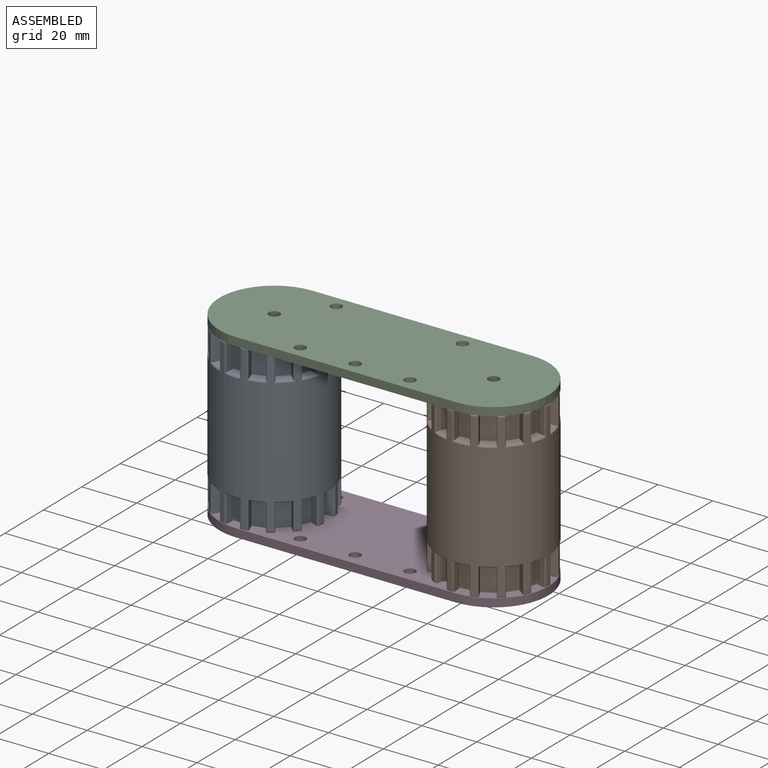
[diagram: assembled view]
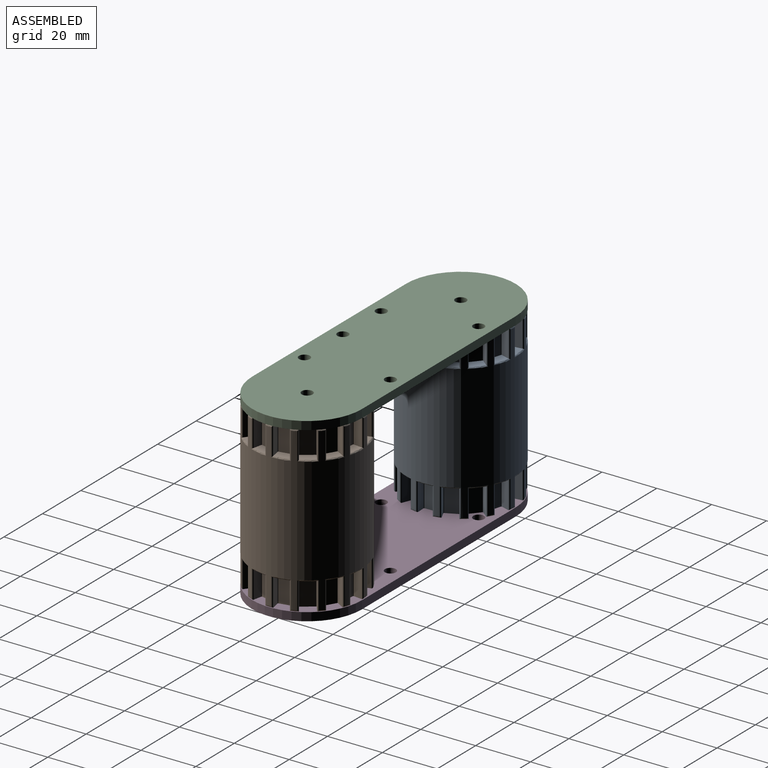
[diagram: assembled view, second angle]
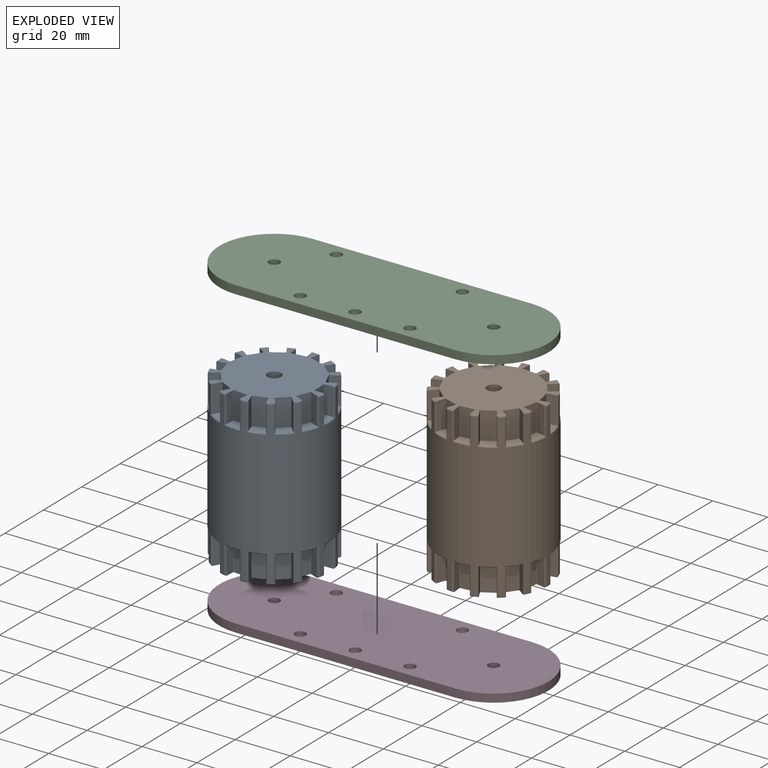
[diagram: exploded view]
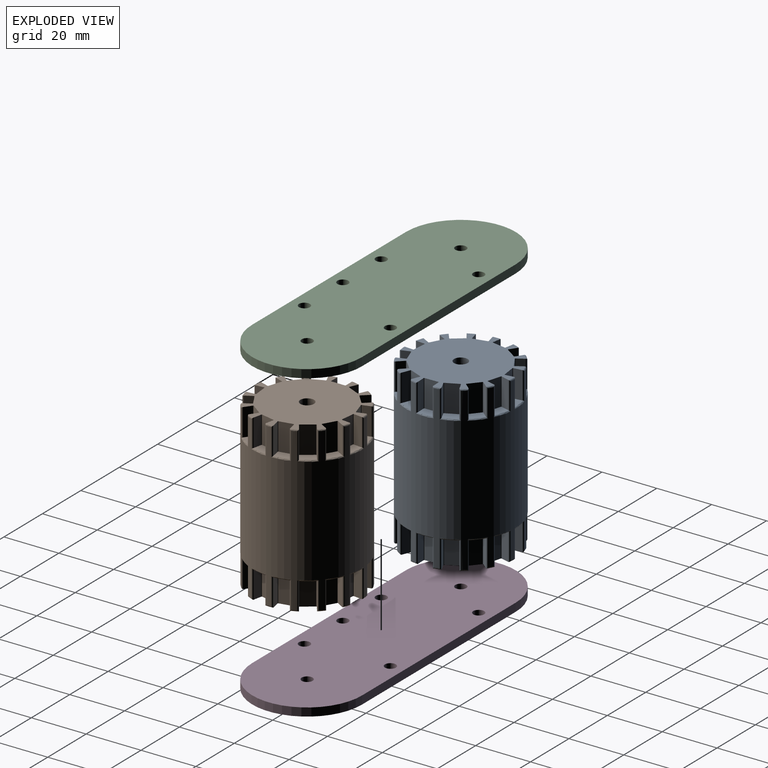
[diagram: exploded view, second angle]
ASSEMBLY  parts=4 mates=3
PART A: 304 faces, bbox 40.5x40.5x60 mm
  f0: plane 38.98x38.81mm, normal (0,0,1), area 898.7mm2, adj f93,f94,f95,f96,f97,f99,f100,f101
  f1: plane 38.98x38.81mm, normal (0,0,-1), area 898.7mm2, adj f3,f4,f5,f6,f7,f9,f10,f11
  f2: cylinder r=20mm len=59mm, axis (0,0,-1), area 5448.2mm2, adj f184,f185,f186,f187,f188,f189,f190,f191
  f3: plane 10x2.78mm, normal (0.91,0.41,0), area 30.4mm2, adj f1,f4,f8,f281
  f4: cylinder r=0.2mm len=10mm, axis (0,0,-1), area 3.1mm2, adj f1,f3,f5,f8
  f5: plane 10x4.53mm, normal (0.41,-0.91,0), area 49.6mm2, adj f1,f4,f6,f8
  f6: cylinder r=0.2mm len=10mm, axis (0,0,-1), area 3.1mm2, adj f1,f5,f7,f8
  f7: plane 10x2.78mm, normal (-0.91,-0.41,0), area 30.4mm2, adj f1,f6,f8,f285
  f8: plane 6.19x5.15mm, normal (0,0,-1), area 18.4mm2, adj f3,f4,f5,f6,f7,f281,f283,f285
  f9: plane 10x2.63mm, normal (-0.5,-0.87,0), area 30.4mm2, adj f1,f10,f14,f254
  f10: cylinder r=0.2mm len=10mm, axis (0,0,-1), area 3.1mm2, adj f1,f9,f11,f14
  f11: plane 10x4.3mm, normal (-0.87,0.5,0), area 49.6mm2, adj f1,f10,f12,f14
  f12: cylinder r=0.2mm len=10mm, axis (0,0,-1), area 3.1mm2, adj f1,f11,f13,f14
  f13: plane 10x2.63mm, normal (0.5,0.87,0), area 30.4mm2, adj f1,f12,f14,f250
  f14: plane 6.23x5.48mm, normal (0,0,-1), area 18.4mm2, adj f9,f10,f11,f12,f13,f250,f252,f254
  f15: plane 10x3.02mm, normal (-0.1,-0.99,0), area 30.4mm2, adj f1,f16,f20,f246
  f16: cylinder r=0.2mm len=10mm, axis (0,0,-1), area 3.1mm2, adj f1,f15,f17,f20
  f17: plane 10x4.93mm, normal (-0.99,0.1,0), area 49.6mm2, adj f1,f16,f18,f20
  f18: cylinder r=0.2mm len=10mm, axis (0,0,-1), area 3.1mm2, adj f1,f17,f19,f20
  f19: plane 10x3.02mm, normal (0.1,0.99,0), area 30.4mm2, adj f1,f18,f20,f245
  f20: plane 5.66x3.85mm, normal (0,0,-1), area 18.4mm2, adj f15,f16,f17,f18,f19,f244,f245,f246
  f21: plane 10x2.89mm, normal (0.31,-0.95,0), area 30.4mm2, adj f1,f22,f26,f249
  f22: cylinder r=0.2mm len=10mm, axis (0,0,-1), area 3.1mm2, adj f1,f21,f23,f26
  f23: plane 10x4.72mm, normal (-0.95,-0.31,0), area 49.6mm2, adj f1,f22,f24,f26
  f24: cylinder r=0.2mm len=10mm, axis (0,0,-1), area 3.1mm2, adj f1,f23,f25,f26
  f25: plane 10x2.89mm, normal (-0.31,0.95,0), area 30.4mm2, adj f1,f24,f26,f253
  f26: plane 6.08x4.76mm, normal (0,0,-1), area 18.4mm2, adj f21,f22,f23,f24,f25,f249,f251,f253
  f27: plane 10x2.26mm, normal (0.67,-0.74,0), area 30.4mm2, adj f1,f28,f32,f257
  f28: cylinder r=0.2mm len=10mm, axis (0,0,-1), area 3.1mm2, adj f1,f27,f29,f32
  f29: plane 10x3.69mm, normal (-0.74,-0.67,0), area 49.6mm2, adj f1,f28,f30,f32
  f30: cylinder r=0.2mm len=10mm, axis (0,0,-1), area 3.1mm2, adj f1,f29,f31,f32
  f31: plane 10x2.26mm, normal (-0.67,0.74,0), area 30.4mm2, adj f1,f30,f32,f261
  f32: plane 6.12x5.97mm, normal (0,0,-1), area 18.4mm2, adj f27,f28,f29,f30,f31,f257,f259,f261
  f33: plane 10x2.78mm, normal (0.91,-0.41,0), area 30.4mm2, adj f1,f34,f38,f265
  f34: cylinder r=0.2mm len=10mm, axis (0,0,-1), area 3.1mm2, adj f1,f33,f35,f38
  f35: plane 10x4.53mm, normal (-0.41,-0.91,0), area 49.6mm2, adj f1,f34,f36,f38
  f36: cylinder r=0.2mm len=10mm, axis (0,0,-1), area 3.1mm2, adj f1,f35,f37,f38
  f37: plane 10x2.78mm, normal (-0.91,0.41,0), area 30.4mm2, adj f1,f36,f38,f269
  f38: plane 6.19x5.15mm, normal (0,0,-1), area 18.4mm2, adj f33,f34,f35,f36,f37,f265,f267,f269
  f39: plane 10x3.04mm, normal (1,0,0), area 30.4mm2, adj f1,f40,f44,f273
  f40: cylinder r=0.2mm len=10mm, axis (0,0,-1), area 3.1mm2, adj f1,f39,f41,f44
  f41: plane 10x4.96mm, normal (0,-1,0), area 49.6mm2, adj f1,f40,f42,f44
  f42: cylinder r=0.2mm len=10mm, axis (0,0,-1), area 3.1mm2, adj f1,f41,f43,f44
  f43: plane 10x3.04mm, normal (-1,0,0), area 30.4mm2, adj f1,f42,f44,f277
  f44: plane 5.37x3.5mm, normal (0,0,-1), area 18.4mm2, adj f39,f40,f41,f42,f43,f273,f275,f277
  f45: plane 10x2.26mm, normal (0.67,0.74,0), area 30.4mm2, adj f1,f46,f50,f289
  f46: cylinder r=0.2mm len=10mm, axis (0,0,-1), area 3.1mm2, adj f1,f45,f47,f50
  f47: plane 10x3.69mm, normal (0.74,-0.67,0), area 49.6mm2, adj f1,f46,f48,f50
  f48: cylinder r=0.2mm len=10mm, axis (0,0,-1), area 3.1mm2, adj f1,f47,f49,f50
  f49: plane 10x2.26mm, normal (-0.67,-0.74,0), area 30.4mm2, adj f1,f48,f50,f293
  f50: plane 6.12x5.97mm, normal (0,0,-1), area 18.4mm2, adj f45,f46,f47,f48,f49,f289,f291,f293
  f51: plane 10x2.89mm, normal (0.31,0.95,0), area 30.4mm2, adj f1,f52,f56,f297
  f52: cylinder r=0.2mm len=10mm, axis (0,0,-1), area 3.1mm2, adj f1,f51,f53,f56
  f53: plane 10x4.72mm, normal (0.95,-0.31,0), area 49.6mm2, adj f1,f52,f54,f56
  f54: cylinder r=0.2mm len=10mm, axis (0,0,-1), area 3.1mm2, adj f1,f53,f55,f56
  f55: plane 10x2.89mm, normal (-0.31,-0.95,0), area 30.4mm2, adj f1,f54,f56,f301
  f56: plane 6.08x4.76mm, normal (0,0,-1), area 18.4mm2, adj f51,f52,f53,f54,f55,f297,f299,f301
  f57: plane 10x3.02mm, normal (-0.1,0.99,0), area 30.4mm2, adj f1,f58,f62,f302
  f58: cylinder r=0.2mm len=10mm, axis (0,0,-1), area 3.1mm2, adj f1,f57,f59,f62
  f59: plane 10x4.93mm, normal (0.99,0.1,0), area 49.6mm2, adj f1,f58,f60,f62
  f60: cylinder r=0.2mm len=10mm, axis (0,0,-1), area 3.1mm2, adj f1,f59,f61,f62
  f61: plane 10x3.02mm, normal (0.1,-0.99,0), area 30.4mm2, adj f1,f60,f62,f298
  f62: plane 5.66x3.85mm, normal (0,0,-1), area 18.4mm2, adj f57,f58,f59,f60,f61,f298,f300,f302
  f63: plane 10x2.63mm, normal (-0.5,0.87,0), area 30.4mm2, adj f1,f64,f68,f294
  f64: cylinder r=0.2mm len=10mm, axis (0,0,-1), area 3.1mm2, adj f1,f63,f65,f68
  f65: plane 10x4.3mm, normal (0.87,0.5,0), area 49.6mm2, adj f1,f64,f66,f68
  f66: cylinder r=0.2mm len=10mm, axis (0,0,-1), area 3.1mm2, adj f1,f65,f67,f68
  f67: plane 10x2.63mm, normal (0.5,-0.87,0), area 30.4mm2, adj f1,f66,f68,f290
  f68: plane 6.23x5.48mm, normal (0,0,-1), area 18.4mm2, adj f63,f64,f65,f66,f67,f290,f292,f294
  f69: plane 10x2.46mm, normal (-0.81,0.59,0), area 30.4mm2, adj f1,f70,f74,f286
  f70: cylinder r=0.2mm len=10mm, axis (0,0,-1), area 3.1mm2, adj f1,f69,f71,f74
  f71: plane 10x4.01mm, normal (0.59,0.81,0), area 49.6mm2, adj f1,f70,f72,f74
  f72: cylinder r=0.2mm len=10mm, axis (0,0,-1), area 3.1mm2, adj f1,f71,f73,f74
  f73: plane 10x2.46mm, normal (0.81,-0.59,0), area 30.4mm2, adj f1,f72,f74,f282
  f74: plane 6.21x5.76mm, normal (0,0,-1), area 18.4mm2, adj f69,f70,f71,f72,f73,f282,f284,f286
  f75: plane 10x2.97mm, normal (-0.98,0.21,0), area 30.4mm2, adj f1,f76,f80,f278
  f76: cylinder r=0.2mm len=10mm, axis (0,0,-1), area 3.1mm2, adj f1,f75,f77,f80
  f77: plane 10x4.85mm, normal (0.21,0.98,0), area 49.6mm2, adj f1,f76,f78,f80
  f78: cylinder r=0.2mm len=10mm, axis (0,0,-1), area 3.1mm2, adj f1,f77,f79,f80
  f79: plane 10x2.97mm, normal (0.98,-0.21,0), area 30.4mm2, adj f1,f78,f80,f274
  f80: plane 5.9x4.32mm, normal (0,0,-1), area 18.4mm2, adj f75,f76,f77,f78,f79,f274,f276,f278
  f81: plane 10x2.97mm, normal (-0.98,-0.21,0), area 30.4mm2, adj f1,f82,f86,f270
  f82: cylinder r=0.2mm len=10mm, axis (0,0,-1), area 3.1mm2, adj f1,f81,f83,f86
  f83: plane 10x4.85mm, normal (-0.21,0.98,0), area 49.6mm2, adj f1,f82,f84,f86
  f84: cylinder r=0.2mm len=10mm, axis (0,0,-1), area 3.1mm2, adj f1,f83,f85,f86
  f85: plane 10x2.97mm, normal (0.98,0.21,0), area 30.4mm2, adj f1,f84,f86,f266
  f86: plane 5.9x4.32mm, normal (0,0,-1), area 18.4mm2, adj f81,f82,f83,f84,f85,f266,f268,f270
  f87: plane 10x2.46mm, normal (-0.81,-0.59,0), area 30.4mm2, adj f1,f88,f92,f262
  f88: cylinder r=0.2mm len=10mm, axis (0,0,-1), area 3.1mm2, adj f1,f87,f89,f92
  f89: plane 10x4.01mm, normal (-0.59,0.81,0), area 49.6mm2, adj f1,f88,f90,f92
  f90: cylinder r=0.2mm len=10mm, axis (0,0,-1), area 3.1mm2, adj f1,f89,f91,f92
  f91: plane 10x2.46mm, normal (0.81,0.59,0), area 30.4mm2, adj f1,f90,f92,f258
  f92: plane 6.21x5.76mm, normal (0,0,-1), area 18.4mm2, adj f87,f88,f89,f90,f91,f258,f260,f262
  f93: plane 10x2.78mm, normal (0.91,0.41,0), area 30.4mm2, adj f0,f97,f98,f221
  f94: plane 10x2.78mm, normal (-0.91,-0.41,0), area 30.4mm2, adj f0,f95,f98,f225
  f95: cylinder r=0.2mm len=10mm, axis (0,0,1), area 3.1mm2, adj f0,f94,f96,f98
  f96: plane 10x4.53mm, normal (0.41,-0.91,0), area 49.6mm2, adj f0,f95,f97,f98
  f97: cylinder r=0.2mm len=10mm, axis (0,0,1), area 3.1mm2, adj f0,f93,f96,f98
  f98: plane 6.19x5.15mm, normal (0,0,1), area 18.4mm2, adj f93,f94,f95,f96,f97,f221,f223,f225
  f99: plane 10x2.63mm, normal (-0.5,-0.87,0), area 30.4mm2, adj f0,f103,f104,f194
  f100: plane 10x2.63mm, normal (0.5,0.87,0), area 30.4mm2, adj f0,f101,f104,f190
  f101: cylinder r=0.2mm len=10mm, axis (0,0,1), area 3.1mm2, adj f0,f100,f102,f104
  f102: plane 10x4.3mm, normal (-0.87,0.5,0), area 49.6mm2, adj f0,f101,f103,f104
  f103: cylinder r=0.2mm len=10mm, axis (0,0,1), area 3.1mm2, adj f0,f99,f102,f104
  f104: plane 6.23x5.48mm, normal (0,0,1), area 18.4mm2, adj f99,f100,f101,f102,f103,f190,f192,f194
  f105: plane 10x3.02mm, normal (-0.1,-0.99,0), area 30.4mm2, adj f0,f109,f110,f186
  f106: plane 10x3.02mm, normal (0.1,0.99,0), area 30.4mm2, adj f0,f107,f110,f185
  f107: cylinder r=0.2mm len=10mm, axis (0,0,1), area 3.1mm2, adj f0,f106,f108,f110
  f108: plane 10x4.93mm, normal (-0.99,0.1,0), area 49.6mm2, adj f0,f107,f109,f110
  f109: cylinder r=0.2mm len=10mm, axis (0,0,1), area 3.1mm2, adj f0,f105,f108,f110
  f110: plane 5.66x3.85mm, normal (0,0,1), area 18.4mm2, adj f105,f106,f107,f108,f109,f184,f185,f186
  f111: plane 10x2.89mm, normal (0.31,-0.95,0), area 30.4mm2, adj f0,f115,f116,f189
  f112: plane 10x2.89mm, normal (-0.31,0.95,0), area 30.4mm2, adj f0,f113,f116,f193
  f113: cylinder r=0.2mm len=10mm, axis (0,0,1), area 3.1mm2, adj f0,f112,f114,f116
  f114: plane 10x4.72mm, normal (-0.95,-0.31,0), area 49.6mm2, adj f0,f113,f115,f116
  f115: cylinder r=0.2mm len=10mm, axis (0,0,1), area 3.1mm2, adj f0,f111,f114,f116
  f116: plane 6.08x4.76mm, normal (0,0,1), area 18.4mm2, adj f111,f112,f113,f114,f115,f189,f191,f193
  f117: plane 10x2.26mm, normal (0.67,-0.74,0), area 30.4mm2, adj f0,f121,f122,f197
  f118: plane 10x2.26mm, normal (-0.67,0.74,0), area 30.4mm2, adj f0,f119,f122,f201
  f119: cylinder r=0.2mm len=10mm, axis (0,0,1), area 3.1mm2, adj f0,f118,f120,f122
  f120: plane 10x3.69mm, normal (-0.74,-0.67,0), area 49.6mm2, adj f0,f119,f121,f122
  f121: cylinder r=0.2mm len=10mm, axis (0,0,1), area 3.1mm2, adj f0,f117,f120,f122
  f122: plane 6.12x5.97mm, normal (0,0,1), area 18.4mm2, adj f117,f118,f119,f120,f121,f197,f199,f201
  f123: plane 10x2.78mm, normal (0.91,-0.41,0), area 30.4mm2, adj f0,f127,f128,f205
  f124: plane 10x2.78mm, normal (-0.91,0.41,0), area 30.4mm2, adj f0,f125,f128,f209
  f125: cylinder r=0.2mm len=10mm, axis (0,0,1), area 3.1mm2, adj f0,f124,f126,f128
  f126: plane 10x4.53mm, normal (-0.41,-0.91,0), area 49.6mm2, adj f0,f125,f127,f128
  f127: cylinder r=0.2mm len=10mm, axis (0,0,1), area 3.1mm2, adj f0,f123,f126,f128
  f128: plane 6.19x5.15mm, normal (0,0,1), area 18.4mm2, adj f123,f124,f125,f126,f127,f205,f207,f209
  f129: plane 10x3.04mm, normal (1,0,0), area 30.4mm2, adj f0,f133,f134,f213
  f130: plane 10x3.04mm, normal (-1,0,0), area 30.4mm2, adj f0,f131,f134,f217
  f131: cylinder r=0.2mm len=10mm, axis (0,0,1), area 3.1mm2, adj f0,f130,f132,f134
  f132: plane 10x4.96mm, normal (0,-1,0), area 49.6mm2, adj f0,f131,f133,f134
  f133: cylinder r=0.2mm len=10mm, axis (0,0,1), area 3.1mm2, adj f0,f129,f132,f134
  f134: plane 5.37x3.5mm, normal (0,0,1), area 18.4mm2, adj f129,f130,f131,f132,f133,f213,f215,f217
  f135: plane 10x2.26mm, normal (0.67,0.74,0), area 30.4mm2, adj f0,f139,f140,f229
  f136: plane 10x2.26mm, normal (-0.67,-0.74,0), area 30.4mm2, adj f0,f137,f140,f233
  f137: cylinder r=0.2mm len=10mm, axis (0,0,1), area 3.1mm2, adj f0,f136,f138,f140
  f138: plane 10x3.69mm, normal (0.74,-0.67,0), area 49.6mm2, adj f0,f137,f139,f140
  f139: cylinder r=0.2mm len=10mm, axis (0,0,1), area 3.1mm2, adj f0,f135,f138,f140
  f140: plane 6.12x5.97mm, normal (0,0,1), area 18.4mm2, adj f135,f136,f137,f138,f139,f229,f231,f233
  f141: plane 10x2.89mm, normal (0.31,0.95,0), area 30.4mm2, adj f0,f145,f146,f237
  f142: plane 10x2.89mm, normal (-0.31,-0.95,0), area 30.4mm2, adj f0,f143,f146,f241
  f143: cylinder r=0.2mm len=10mm, axis (0,0,1), area 3.1mm2, adj f0,f142,f144,f146
  f144: plane 10x4.72mm, normal (0.95,-0.31,0), area 49.6mm2, adj f0,f143,f145,f146
  f145: cylinder r=0.2mm len=10mm, axis (0,0,1), area 3.1mm2, adj f0,f141,f144,f146
  f146: plane 6.08x4.76mm, normal (0,0,1), area 18.4mm2, adj f141,f142,f143,f144,f145,f237,f239,f241
  f147: plane 10x3.02mm, normal (-0.1,0.99,0), area 30.4mm2, adj f0,f151,f152,f242
  f148: plane 10x3.02mm, normal (0.1,-0.99,0), area 30.4mm2, adj f0,f149,f152,f238
  f149: cylinder r=0.2mm len=10mm, axis (0,0,1), area 3.1mm2, adj f0,f148,f150,f152
  f150: plane 10x4.93mm, normal (0.99,0.1,0), area 49.6mm2, adj f0,f149,f151,f152
  f151: cylinder r=0.2mm len=10mm, axis (0,0,1), area 3.1mm2, adj f0,f147,f150,f152
  f152: plane 5.66x3.85mm, normal (0,0,1), area 18.4mm2, adj f147,f148,f149,f150,f151,f238,f240,f242
  f153: plane 10x2.63mm, normal (-0.5,0.87,0), area 30.4mm2, adj f0,f157,f158,f234
  f154: plane 10x2.63mm, normal (0.5,-0.87,0), area 30.4mm2, adj f0,f155,f158,f230
  f155: cylinder r=0.2mm len=10mm, axis (0,0,1), area 3.1mm2, adj f0,f154,f156,f158
  f156: plane 10x4.3mm, normal (0.87,0.5,0), area 49.6mm2, adj f0,f155,f157,f158
  f157: cylinder r=0.2mm len=10mm, axis (0,0,1), area 3.1mm2, adj f0,f153,f156,f158
  f158: plane 6.23x5.48mm, normal (0,0,1), area 18.4mm2, adj f153,f154,f155,f156,f157,f230,f232,f234
  f159: plane 10x2.46mm, normal (-0.81,0.59,0), area 30.4mm2, adj f0,f163,f164,f226
  f160: plane 10x2.46mm, normal (0.81,-0.59,0), area 30.4mm2, adj f0,f161,f164,f222
  f161: cylinder r=0.2mm len=10mm, axis (0,0,1), area 3.1mm2, adj f0,f160,f162,f164
  f162: plane 10x4.01mm, normal (0.59,0.81,0), area 49.6mm2, adj f0,f161,f163,f164
  f163: cylinder r=0.2mm len=10mm, axis (0,0,1), area 3.1mm2, adj f0,f159,f162,f164
  f164: plane 6.21x5.76mm, normal (0,0,1), area 18.4mm2, adj f159,f160,f161,f162,f163,f222,f224,f226
  f165: plane 10x2.97mm, normal (-0.98,0.21,0), area 30.4mm2, adj f0,f169,f170,f218
  f166: plane 10x2.97mm, normal (0.98,-0.21,0), area 30.4mm2, adj f0,f167,f170,f214
  f167: cylinder r=0.2mm len=10mm, axis (0,0,1), area 3.1mm2, adj f0,f166,f168,f170
  f168: plane 10x4.85mm, normal (0.21,0.98,0), area 49.6mm2, adj f0,f167,f169,f170
  f169: cylinder r=0.2mm len=10mm, axis (0,0,1), area 3.1mm2, adj f0,f165,f168,f170
  f170: plane 5.9x4.32mm, normal (0,0,1), area 18.4mm2, adj f165,f166,f167,f168,f169,f214,f216,f218
  f171: plane 10x2.97mm, normal (-0.98,-0.21,0), area 30.4mm2, adj f0,f175,f176,f210
  f172: plane 10x2.97mm, normal (0.98,0.21,0), area 30.4mm2, adj f0,f173,f176,f206
  f173: cylinder r=0.2mm len=10mm, axis (0,0,1), area 3.1mm2, adj f0,f172,f174,f176
  f174: plane 10x4.85mm, normal (-0.21,0.98,0), area 49.6mm2, adj f0,f173,f175,f176
  f175: cylinder r=0.2mm len=10mm, axis (0,0,1), area 3.1mm2, adj f0,f171,f174,f176
  f176: plane 5.9x4.32mm, normal (0,0,1), area 18.4mm2, adj f171,f172,f173,f174,f175,f206,f208,f210
  f177: plane 10x2.46mm, normal (-0.81,-0.59,0), area 30.4mm2, adj f0,f181,f182,f202
  f178: plane 10x2.46mm, normal (0.81,0.59,0), area 30.4mm2, adj f0,f179,f182,f198
  f179: cylinder r=0.2mm len=10mm, axis (0,0,1), area 3.1mm2, adj f0,f178,f180,f182
  f180: plane 10x4.01mm, normal (-0.59,0.81,0), area 49.6mm2, adj f0,f179,f181,f182
  f181: cylinder r=0.2mm len=10mm, axis (0,0,1), area 3.1mm2, adj f0,f177,f180,f182
  f182: plane 6.21x5.76mm, normal (0,0,1), area 18.4mm2, adj f177,f178,f179,f180,f181,f198,f200,f202
  f183: cylinder r=2.5mm len=60mm, axis (0,0,-1), area 942.5mm2, adj f0,f1
  f184: torus R=19.5mm, axis (0,0,1), area 4.6mm2, adj f2,f110,f185,f186
  f185: cylinder r=0.5mm len=10.5mm, axis (0,0,-1), area 8.7mm2, adj f0,f2,f106,f110,f184,f187
  f186: cylinder r=0.5mm len=10.5mm, axis (0,0,-1), area 8.7mm2, adj f0,f2,f105,f110,f184,f188
  f187: torus R=19.5mm, axis (0,0,1), area 1.9mm2, adj f0,f2,f185,f189
  f188: torus R=19.5mm, axis (0,0,1), area 1.9mm2, adj f0,f2,f186,f190
  f189: cylinder r=0.5mm len=10.5mm, axis (0,0,-1), area 8.7mm2, adj f0,f2,f111,f116,f187,f191
  f190: cylinder r=0.5mm len=10.5mm, axis (0,0,-1), area 8.7mm2, adj f0,f2,f100,f104,f188,f192
  f191: torus R=19.5mm, axis (0,0,1), area 4.6mm2, adj f2,f116,f189,f193
  f192: torus R=19.5mm, axis (0,0,1), area 4.6mm2, adj f2,f104,f190,f194
  f193: cylinder r=0.5mm len=10.5mm, axis (0,0,-1), area 8.7mm2, adj f0,f2,f112,f116,f191,f195
  f194: cylinder r=0.5mm len=10.5mm, axis (0,0,-1), area 8.7mm2, adj f0,f2,f99,f104,f192,f196
  f195: torus R=19.5mm, axis (0,0,1), area 1.9mm2, adj f0,f2,f193,f197
  f196: torus R=19.5mm, axis (0,0,1), area 1.9mm2, adj f0,f2,f194,f198
  f197: cylinder r=0.5mm len=10.5mm, axis (0,0,-1), area 8.7mm2, adj f0,f2,f117,f122,f195,f199
  f198: cylinder r=0.5mm len=10.5mm, axis (0,0,-1), area 8.7mm2, adj f0,f2,f178,f182,f196,f200
  f199: torus R=19.5mm, axis (0,0,1), area 4.6mm2, adj f2,f122,f197,f201
  f200: torus R=19.5mm, axis (0,0,1), area 4.6mm2, adj f2,f182,f198,f202
  f201: cylinder r=0.5mm len=10.5mm, axis (0,0,-1), area 8.7mm2, adj f0,f2,f118,f122,f199,f203
  f202: cylinder r=0.5mm len=10.5mm, axis (0,0,-1), area 8.7mm2, adj f0,f2,f177,f182,f200,f204
  f203: torus R=19.5mm, axis (0,0,1), area 1.9mm2, adj f0,f2,f201,f205
  f204: torus R=19.5mm, axis (0,0,1), area 1.9mm2, adj f0,f2,f202,f206
  f205: cylinder r=0.5mm len=10.5mm, axis (0,0,-1), area 8.7mm2, adj f0,f2,f123,f128,f203,f207
  f206: cylinder r=0.5mm len=10.5mm, axis (0,0,-1), area 8.7mm2, adj f0,f2,f172,f176,f204,f208
  f207: torus R=19.5mm, axis (0,0,1), area 4.6mm2, adj f2,f128,f205,f209
  f208: torus R=19.5mm, axis (0,0,1), area 4.6mm2, adj f2,f176,f206,f210
  f209: cylinder r=0.5mm len=10.5mm, axis (0,0,-1), area 8.7mm2, adj f0,f2,f124,f128,f207,f211
  f210: cylinder r=0.5mm len=10.5mm, axis (0,0,-1), area 8.7mm2, adj f0,f2,f171,f176,f208,f212
  f211: torus R=19.5mm, axis (0,0,1), area 1.9mm2, adj f0,f2,f209,f213
  f212: torus R=19.5mm, axis (0,0,1), area 1.9mm2, adj f0,f2,f210,f214
  f213: cylinder r=0.5mm len=10.5mm, axis (0,0,-1), area 8.7mm2, adj f0,f2,f129,f134,f211,f215
  f214: cylinder r=0.5mm len=10.5mm, axis (0,0,-1), area 8.7mm2, adj f0,f2,f166,f170,f212,f216
  f215: torus R=19.5mm, axis (0,0,1), area 4.6mm2, adj f2,f134,f213,f217
  f216: torus R=19.5mm, axis (0,0,1), area 4.6mm2, adj f2,f170,f214,f218
  f217: cylinder r=0.5mm len=10.5mm, axis (0,0,-1), area 8.7mm2, adj f0,f2,f130,f134,f215,f219
  f218: cylinder r=0.5mm len=10.5mm, axis (0,0,-1), area 8.7mm2, adj f0,f2,f165,f170,f216,f220
  f219: torus R=19.5mm, axis (0,0,1), area 1.9mm2, adj f0,f2,f217,f221
  f220: torus R=19.5mm, axis (0,0,1), area 1.9mm2, adj f0,f2,f218,f222
  f221: cylinder r=0.5mm len=10.5mm, axis (0,0,-1), area 8.7mm2, adj f0,f2,f93,f98,f219,f223
  f222: cylinder r=0.5mm len=10.5mm, axis (0,0,-1), area 8.7mm2, adj f0,f2,f160,f164,f220,f224
  f223: torus R=19.5mm, axis (0,0,1), area 4.6mm2, adj f2,f98,f221,f225
  f224: torus R=19.5mm, axis (0,0,1), area 4.6mm2, adj f2,f164,f222,f226
  f225: cylinder r=0.5mm len=10.5mm, axis (0,0,-1), area 8.7mm2, adj f0,f2,f94,f98,f223,f227
  f226: cylinder r=0.5mm len=10.5mm, axis (0,0,-1), area 8.7mm2, adj f0,f2,f159,f164,f224,f228
  f227: torus R=19.5mm, axis (0,0,1), area 1.9mm2, adj f0,f2,f225,f229
  f228: torus R=19.5mm, axis (0,0,1), area 1.9mm2, adj f0,f2,f226,f230
  f229: cylinder r=0.5mm len=10.5mm, axis (0,0,-1), area 8.7mm2, adj f0,f2,f135,f140,f227,f231
  f230: cylinder r=0.5mm len=10.5mm, axis (0,0,-1), area 8.7mm2, adj f0,f2,f154,f158,f228,f232
  f231: torus R=19.5mm, axis (0,0,1), area 4.6mm2, adj f2,f140,f229,f233
  f232: torus R=19.5mm, axis (0,0,1), area 4.6mm2, adj f2,f158,f230,f234
  f233: cylinder r=0.5mm len=10.5mm, axis (0,0,-1), area 8.7mm2, adj f0,f2,f136,f140,f231,f235
  f234: cylinder r=0.5mm len=10.5mm, axis (0,0,-1), area 8.7mm2, adj f0,f2,f153,f158,f232,f236
  f235: torus R=19.5mm, axis (0,0,1), area 1.9mm2, adj f0,f2,f233,f237
  f236: torus R=19.5mm, axis (0,0,1), area 1.9mm2, adj f0,f2,f234,f238
  f237: cylinder r=0.5mm len=10.5mm, axis (0,0,-1), area 8.7mm2, adj f0,f2,f141,f146,f235,f239
  f238: cylinder r=0.5mm len=10.5mm, axis (0,0,-1), area 8.7mm2, adj f0,f2,f148,f152,f236,f240
  f239: torus R=19.5mm, axis (0,0,1), area 4.6mm2, adj f2,f146,f237,f241
  f240: torus R=19.5mm, axis (0,0,1), area 4.6mm2, adj f2,f152,f238,f242
  f241: cylinder r=0.5mm len=10.5mm, axis (0,0,-1), area 8.7mm2, adj f0,f2,f142,f146,f239,f243
  f242: cylinder r=0.5mm len=10.5mm, axis (0,0,-1), area 8.7mm2, adj f0,f2,f147,f152,f240,f243
  f243: torus R=19.5mm, axis (0,0,1), area 1.9mm2, adj f0,f2,f241,f242
  f244: torus R=19.5mm, axis (0,0,-1), area 4.6mm2, adj f2,f20,f245,f246
  f245: cylinder r=0.5mm len=10.5mm, axis (0,0,-1), area 8.7mm2, adj f1,f2,f19,f20,f244,f247
  f246: cylinder r=0.5mm len=10.5mm, axis (0,0,-1), area 8.7mm2, adj f1,f2,f15,f20,f244,f248
  f247: torus R=19.5mm, axis (0,0,1), area 1.9mm2, adj f1,f2,f245,f249
  f248: torus R=19.5mm, axis (0,0,1), area 1.9mm2, adj f1,f2,f246,f250
  f249: cylinder r=0.5mm len=10.5mm, axis (0,0,-1), area 8.7mm2, adj f1,f2,f21,f26,f247,f251
  f250: cylinder r=0.5mm len=10.5mm, axis (0,0,-1), area 8.7mm2, adj f1,f2,f13,f14,f248,f252
  f251: torus R=19.5mm, axis (0,0,-1), area 4.6mm2, adj f2,f26,f249,f253
  f252: torus R=19.5mm, axis (0,0,-1), area 4.6mm2, adj f2,f14,f250,f254
  f253: cylinder r=0.5mm len=10.5mm, axis (0,0,-1), area 8.7mm2, adj f1,f2,f25,f26,f251,f255
  f254: cylinder r=0.5mm len=10.5mm, axis (0,0,-1), area 8.7mm2, adj f1,f2,f9,f14,f252,f256
  f255: torus R=19.5mm, axis (0,0,1), area 1.9mm2, adj f1,f2,f253,f257
  f256: torus R=19.5mm, axis (0,0,1), area 1.9mm2, adj f1,f2,f254,f258
  f257: cylinder r=0.5mm len=10.5mm, axis (0,0,-1), area 8.7mm2, adj f1,f2,f27,f32,f255,f259
  f258: cylinder r=0.5mm len=10.5mm, axis (0,0,-1), area 8.7mm2, adj f1,f2,f91,f92,f256,f260
  f259: torus R=19.5mm, axis (0,0,-1), area 4.6mm2, adj f2,f32,f257,f261
  f260: torus R=19.5mm, axis (0,0,-1), area 4.6mm2, adj f2,f92,f258,f262
  f261: cylinder r=0.5mm len=10.5mm, axis (0,0,-1), area 8.7mm2, adj f1,f2,f31,f32,f259,f263
  f262: cylinder r=0.5mm len=10.5mm, axis (0,0,-1), area 8.7mm2, adj f1,f2,f87,f92,f260,f264
  f263: torus R=19.5mm, axis (0,0,1), area 1.9mm2, adj f1,f2,f261,f265
  f264: torus R=19.5mm, axis (0,0,1), area 1.9mm2, adj f1,f2,f262,f266
  f265: cylinder r=0.5mm len=10.5mm, axis (0,0,-1), area 8.7mm2, adj f1,f2,f33,f38,f263,f267
  f266: cylinder r=0.5mm len=10.5mm, axis (0,0,-1), area 8.7mm2, adj f1,f2,f85,f86,f264,f268
  f267: torus R=19.5mm, axis (0,0,-1), area 4.6mm2, adj f2,f38,f265,f269
  f268: torus R=19.5mm, axis (0,0,-1), area 4.6mm2, adj f2,f86,f266,f270
  f269: cylinder r=0.5mm len=10.5mm, axis (0,0,-1), area 8.7mm2, adj f1,f2,f37,f38,f267,f271
  f270: cylinder r=0.5mm len=10.5mm, axis (0,0,-1), area 8.7mm2, adj f1,f2,f81,f86,f268,f272
  f271: torus R=19.5mm, axis (0,0,1), area 1.9mm2, adj f1,f2,f269,f273
  f272: torus R=19.5mm, axis (0,0,1), area 1.9mm2, adj f1,f2,f270,f274
  f273: cylinder r=0.5mm len=10.5mm, axis (0,0,-1), area 8.7mm2, adj f1,f2,f39,f44,f271,f275
  f274: cylinder r=0.5mm len=10.5mm, axis (0,0,-1), area 8.7mm2, adj f1,f2,f79,f80,f272,f276
  f275: torus R=19.5mm, axis (0,0,-1), area 4.6mm2, adj f2,f44,f273,f277
  f276: torus R=19.5mm, axis (0,0,-1), area 4.6mm2, adj f2,f80,f274,f278
  f277: cylinder r=0.5mm len=10.5mm, axis (0,0,-1), area 8.7mm2, adj f1,f2,f43,f44,f275,f279
  f278: cylinder r=0.5mm len=10.5mm, axis (0,0,-1), area 8.7mm2, adj f1,f2,f75,f80,f276,f280
  f279: torus R=19.5mm, axis (0,0,1), area 1.9mm2, adj f1,f2,f277,f281
  f280: torus R=19.5mm, axis (0,0,1), area 1.9mm2, adj f1,f2,f278,f282
  f281: cylinder r=0.5mm len=10.5mm, axis (0,0,-1), area 8.7mm2, adj f1,f2,f3,f8,f279,f283
  f282: cylinder r=0.5mm len=10.5mm, axis (0,0,-1), area 8.7mm2, adj f1,f2,f73,f74,f280,f284
  f283: torus R=19.5mm, axis (0,0,-1), area 4.6mm2, adj f2,f8,f281,f285
  f284: torus R=19.5mm, axis (0,0,-1), area 4.6mm2, adj f2,f74,f282,f286
  f285: cylinder r=0.5mm len=10.5mm, axis (0,0,-1), area 8.7mm2, adj f1,f2,f7,f8,f283,f287
  f286: cylinder r=0.5mm len=10.5mm, axis (0,0,-1), area 8.7mm2, adj f1,f2,f69,f74,f284,f288
  f287: torus R=19.5mm, axis (0,0,1), area 1.9mm2, adj f1,f2,f285,f289
  f288: torus R=19.5mm, axis (0,0,1), area 1.9mm2, adj f1,f2,f286,f290
  f289: cylinder r=0.5mm len=10.5mm, axis (0,0,-1), area 8.7mm2, adj f1,f2,f45,f50,f287,f291
  f290: cylinder r=0.5mm len=10.5mm, axis (0,0,-1), area 8.7mm2, adj f1,f2,f67,f68,f288,f292
  f291: torus R=19.5mm, axis (0,0,-1), area 4.6mm2, adj f2,f50,f289,f293
  f292: torus R=19.5mm, axis (0,0,-1), area 4.6mm2, adj f2,f68,f290,f294
  f293: cylinder r=0.5mm len=10.5mm, axis (0,0,-1), area 8.7mm2, adj f1,f2,f49,f50,f291,f295
  f294: cylinder r=0.5mm len=10.5mm, axis (0,0,-1), area 8.7mm2, adj f1,f2,f63,f68,f292,f296
  f295: torus R=19.5mm, axis (0,0,1), area 1.9mm2, adj f1,f2,f293,f297
  f296: torus R=19.5mm, axis (0,0,1), area 1.9mm2, adj f1,f2,f294,f298
  f297: cylinder r=0.5mm len=10.5mm, axis (0,0,-1), area 8.7mm2, adj f1,f2,f51,f56,f295,f299
  f298: cylinder r=0.5mm len=10.5mm, axis (0,0,-1), area 8.7mm2, adj f1,f2,f61,f62,f296,f300
  f299: torus R=19.5mm, axis (0,0,-1), area 4.6mm2, adj f2,f56,f297,f301
  f300: torus R=19.5mm, axis (0,0,-1), area 4.6mm2, adj f2,f62,f298,f302
  f301: cylinder r=0.5mm len=10.5mm, axis (0,0,-1), area 8.7mm2, adj f1,f2,f55,f56,f299,f303
  f302: cylinder r=0.5mm len=10.5mm, axis (0,0,-1), area 8.7mm2, adj f1,f2,f57,f62,f300,f303
  f303: torus R=19.5mm, axis (0,0,1), area 1.9mm2, adj f1,f2,f301,f302
PART B: same geometry as A
PART C: 13 faces, bbox 120x40x3 mm
  f0: plane 80x3mm, normal (0,1,0), area 240mm2, adj f1,f10,f11,f12
  f1: cylinder r=20mm len=40mm, axis (0,0,-1), area 188.5mm2, adj f0,f2,f11,f12
  f2: plane 80x3mm, normal (0,-1,0), area 240mm2, adj f1,f10,f11,f12
  f3: cylinder r=2mm len=4mm, axis (0,0,-1), area 37.7mm2, adj f11,f12
  f4: cylinder r=2mm len=4mm, axis (0,0,-1), area 37.7mm2, adj f11,f12
  f5: cylinder r=2mm len=4mm, axis (0,0,-1), area 37.7mm2, adj f11,f12
  f6: cylinder r=2mm len=4mm, axis (0,0,-1), area 37.7mm2, adj f11,f12
  f7: cylinder r=2mm len=4mm, axis (0,0,-1), area 37.7mm2, adj f11,f12
  f8: cylinder r=2mm len=4mm, axis (0,0,-1), area 37.7mm2, adj f11,f12
  f9: cylinder r=2mm len=4mm, axis (0,0,-1), area 37.7mm2, adj f11,f12
  f10: cylinder r=20mm len=40mm, axis (0,0,-1), area 188.5mm2, adj f0,f2,f11,f12
  f11: plane 120x40mm, normal (0,0,1), area 4368.7mm2, adj f0,f1,f2,f3,f4,f5,f6,f7
  f12: plane 120x40mm, normal (0,0,-1), area 4368.7mm2, adj f0,f1,f2,f3,f4,f5,f6,f7
PART D: same geometry as C
PLACE A rot(axis=(0.94,-0.34,0),180deg) t=(-60.54,-61.79,70.78)mm
PLACE B rot(axis=(0,0,-1),18.3deg) t=(19.46,-61.79,10.78)mm
PLACE C t=(-20.54,-61.79,70.78)mm
PLACE D t=(-20.54,-61.79,7.78)mm fixed
MATE revolute A.f183 <-> D.f3  axis (0,0,-1) through (-60.54,-61.79,10.78)mm
MATE revolute C.f1 <-> A.f183  axis (0,0,-1) through (-60.54,-61.79,70.78)mm
MATE revolute B.f183 <-> D.f10  axis (0,0,-1) through (19.46,-61.79,10.78)mm
